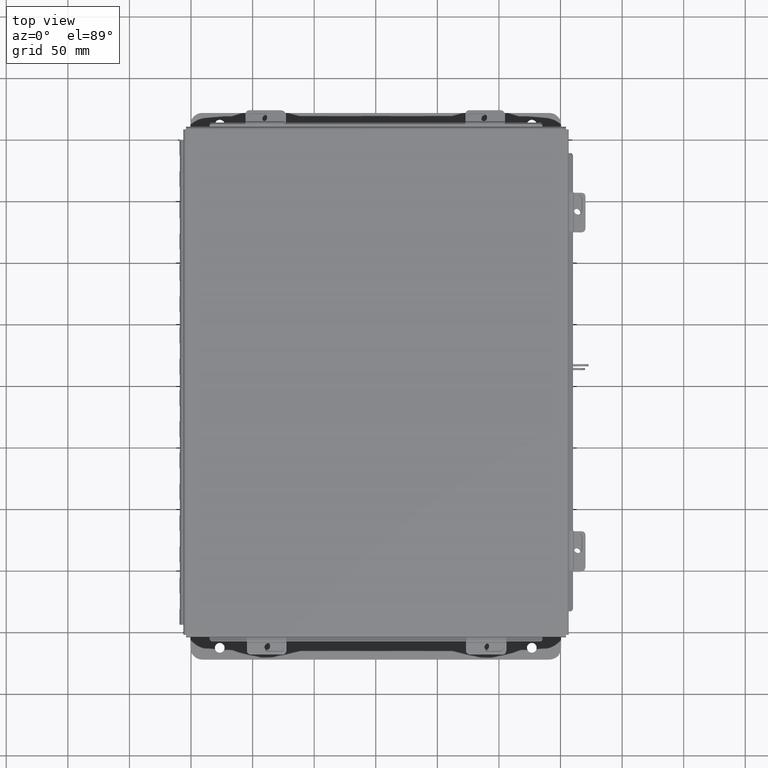
[diagram: clean part render]
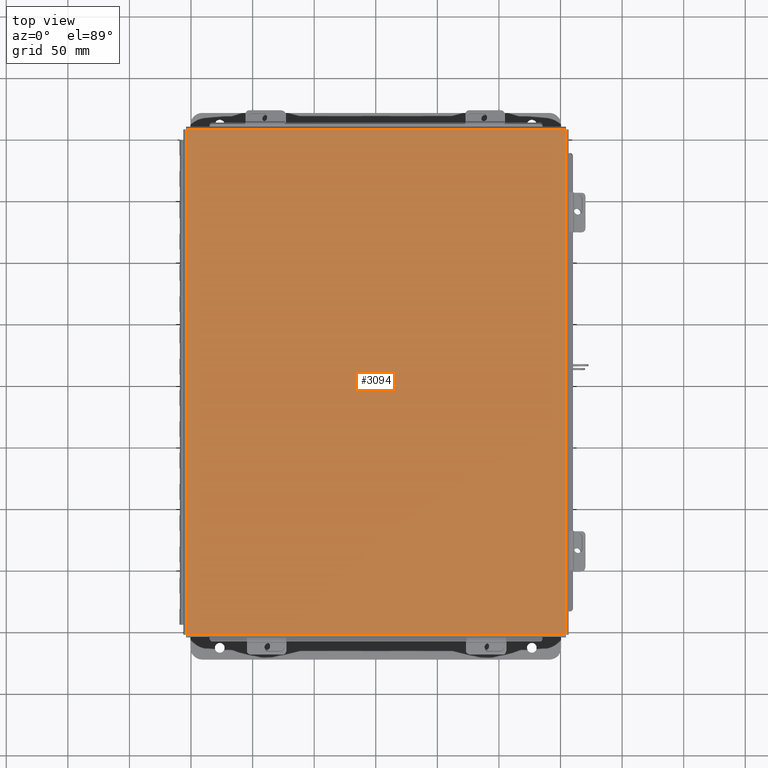
[diagram: same view with one face highlighted and labeled with its STEP entity id]
A machine part, top view. The second image highlights one B-rep face of the part: STEP entity #3094.
In plain terms, the highlighted planar face has unit normal (-0, -0, 1).
Its self-contained STEP definition (entity closure, byte-faithful):
#41 = CARTESIAN_POINT ( 'NONE',  ( -6.068550000000000100, 8.068550000000000100, -0.07470000000000015500 ) ) ;
#1182 = LINE ( 'NONE', #7522, #8933 ) ;
#1664 = LINE ( 'NONE', #4981, #13586 ) ;
#2845 = PLANE ( 'NONE',  #15870 ) ;
#2884 = EDGE_CURVE ( 'NONE', #14668, #18123, #1664, .T. ) ;
#3094 = ADVANCED_FACE ( 'NONE', ( #6015 ), #2845, .T. ) ;
#3220 = VECTOR ( 'NONE', #17814, 39.37007874015748100 ) ;
#3376 = EDGE_CURVE ( 'NONE', #9760, #12704, #1182, .T. ) ;
#4074 = DIRECTION ( 'NONE',  ( -2.258600338820354400E-033, -1.000000000000000000, -0.0000000000000000000 ) ) ;
#4981 = CARTESIAN_POINT ( 'NONE',  ( -6.074478932188137400, 8.068550000000000100, -0.07470000000000015500 ) ) ;
#6015 = FACE_OUTER_BOUND ( 'NONE', #6357, .T. ) ;
#6357 = EDGE_LOOP ( 'NONE', ( #12267, #7283, #12932, #13461 ) ) ;
#6634 = CARTESIAN_POINT ( 'NONE',  ( 6.068550000000000100, -8.068550000000000100, -0.07470000000000015500 ) ) ;
#7283 = ORIENTED_EDGE ( 'NONE', *, *, #10980, .T. ) ;
#7522 = CARTESIAN_POINT ( 'NONE',  ( 6.074478932188137400, -8.068550000000000100, -0.07470000000000015500 ) ) ;
#8885 = DIRECTION ( 'NONE',  ( -0.0000000000000000000, 0.0000000000000000000, -1.000000000000000000 ) ) ;
#8933 = VECTOR ( 'NONE', #9471, 39.37007874015748100 ) ;
#9110 = CARTESIAN_POINT ( 'NONE',  ( -6.068550000000000100, -8.068550000000000100, -0.07470000000000125200 ) ) ;
#9471 = DIRECTION ( 'NONE',  ( -1.000000000000000000, -2.258600338820354400E-033, -0.0000000000000000000 ) ) ;
#9760 = VERTEX_POINT ( 'NONE', #6634 ) ;
#10980 = EDGE_CURVE ( 'NONE', #18123, #9760, #15356, .T. ) ;
#11551 = LINE ( 'NONE', #19452, #3220 ) ;
#11691 = VECTOR ( 'NONE', #4074, 39.37007874015748100 ) ;
#11977 = DIRECTION ( 'NONE',  ( 1.000000000000000000, 2.258600338820354400E-033, -0.0000000000000000000 ) ) ;
#12267 = ORIENTED_EDGE ( 'NONE', *, *, #2884, .T. ) ;
#12704 = VERTEX_POINT ( 'NONE', #9110 ) ;
#12932 = ORIENTED_EDGE ( 'NONE', *, *, #3376, .T. ) ;
#13210 = CARTESIAN_POINT ( 'NONE',  ( -8.537024980200822600E-018, 0.0000000000000000000, -0.07470000000000015500 ) ) ;
#13414 = CARTESIAN_POINT ( 'NONE',  ( 6.068550000000000100, 8.074478932188135600, -0.07469999999999907300 ) ) ;
#13461 = ORIENTED_EDGE ( 'NONE', *, *, #15686, .T. ) ;
#13586 = VECTOR ( 'NONE', #11977, 39.37007874015748100 ) ;
#14668 = VERTEX_POINT ( 'NONE', #41 ) ;
#15258 = CARTESIAN_POINT ( 'NONE',  ( 6.068550000000000100, 8.068550000000000100, -0.07469999999999907300 ) ) ;
#15356 = LINE ( 'NONE', #13414, #11691 ) ;
#15686 = EDGE_CURVE ( 'NONE', #12704, #14668, #11551, .T. ) ;
#15870 = AXIS2_PLACEMENT_3D ( 'NONE', #13210, #8885, #17386 ) ;
#17386 = DIRECTION ( 'NONE',  ( -1.000000000000000000, -2.258600338820354400E-033, 0.0000000000000000000 ) ) ;
#17814 = DIRECTION ( 'NONE',  ( 6.815696461389437500E-033, 1.000000000000000000, 8.208677865577646300E-017 ) ) ;
#18123 = VERTEX_POINT ( 'NONE', #15258 ) ;
#19452 = CARTESIAN_POINT ( 'NONE',  ( -6.068550000000000100, -8.074478932188135600, -0.07470000000000125200 ) ) ;